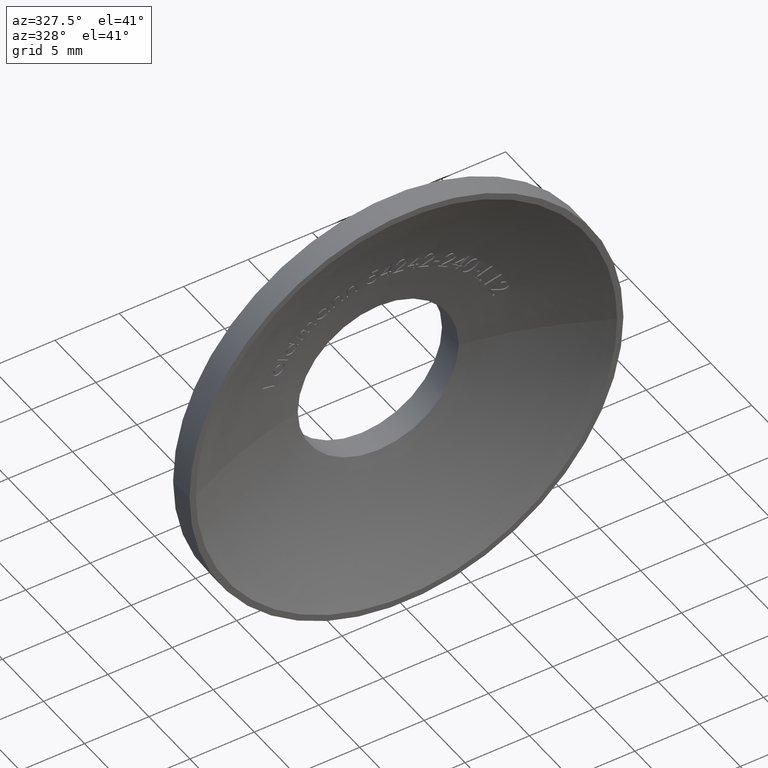
[diagram: clean part render]
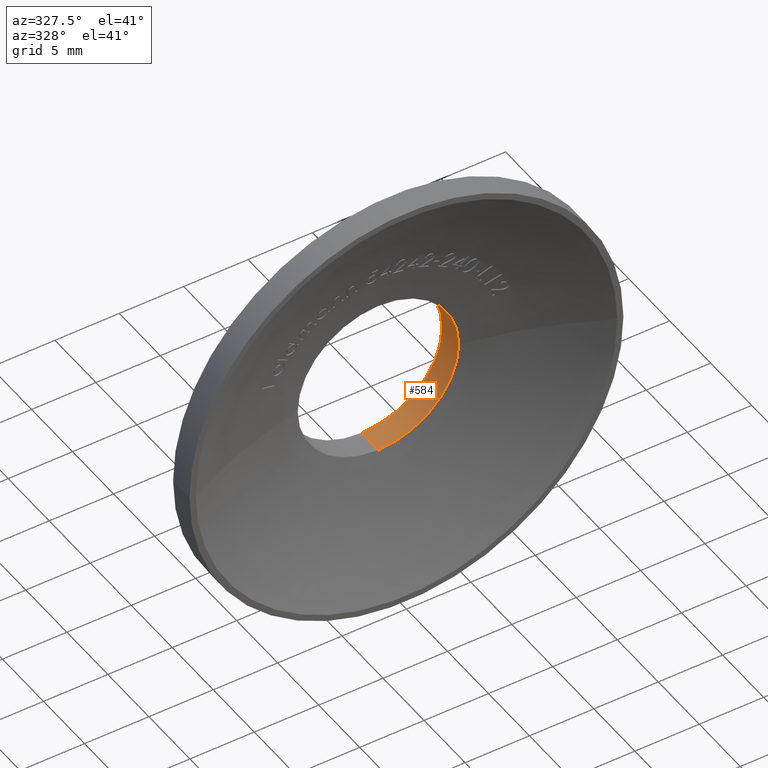
[diagram: same view with one face highlighted and labeled with its STEP entity id]
A machine part, auxiliary view. The second image highlights one B-rep face of the part: STEP entity #584.
In plain terms, the highlighted cylindrical surface (partial cylindrical patch) has radius 6.25 mm, axis along (0, -1, 0).
Its self-contained STEP definition (entity closure, byte-faithful):
#101 = ORIENTED_EDGE ( 'NONE', *, *, #11867, .F. ) ;
#227 = DIRECTION ( 'NONE',  ( 0.0000000000000000000, -1.000000000000000000, 0.0000000000000000000 ) ) ;
#263 = AXIS2_PLACEMENT_3D ( 'NONE', #10973, #10110, #3352 ) ;
#444 = VECTOR ( 'NONE', #227, 1000.000000000000000 ) ;
#569 = DIRECTION ( 'NONE',  ( 0.0000000000000000000, 1.000000000000000000, 0.0000000000000000000 ) ) ;
#584 = ADVANCED_FACE ( 'NONE', ( #7302 ), #5973, .F. ) ;
#728 = ORIENTED_EDGE ( 'NONE', *, *, #9350, .F. ) ;
#1206 = DIRECTION ( 'NONE',  ( 0.0000000000000000000, -1.000000000000000000, 0.0000000000000000000 ) ) ;
#1338 = LINE ( 'NONE', #8780, #444 ) ;
#1705 = CIRCLE ( 'NONE', #263, 6.250000000000000000 ) ;
#1943 = DIRECTION ( 'NONE',  ( 0.0000000000000000000, 0.0000000000000000000, -1.000000000000000000 ) ) ;
#1951 = CARTESIAN_POINT ( 'NONE',  ( 7.654042494670957600E-016, 3.445339509768711800, 6.250000000000000000 ) ) ;
#2762 = CARTESIAN_POINT ( 'NONE',  ( 6.250000000000000000, 5.475361189893106100, 0.0000000000000000000 ) ) ;
#3046 = VERTEX_POINT ( 'NONE', #2762 ) ;
#3345 = EDGE_CURVE ( 'NONE', #5464, #7706, #1338, .T. ) ;
#3352 = DIRECTION ( 'NONE',  ( 0.0000000000000000000, 0.0000000000000000000, -1.000000000000000000 ) ) ;
#3777 = CIRCLE ( 'NONE', #9578, 6.250000000000000000 ) ;
#3934 = CARTESIAN_POINT ( 'NONE',  ( 0.0000000000000000000, 3.445339509768711800, -6.250000000000000000 ) ) ;
#3944 = CARTESIAN_POINT ( 'NONE',  ( 0.0000000000000000000, 5.999999999999991100, 0.0000000000000000000 ) ) ;
#4235 = ORIENTED_EDGE ( 'NONE', *, *, #6866, .F. ) ;
#4320 = DIRECTION ( 'NONE',  ( -8.881784197001254300E-016, 0.0000000000000000000, -1.000000000000000000 ) ) ;
#4373 = ORIENTED_EDGE ( 'NONE', *, *, #11658, .F. ) ;
#4862 = VECTOR ( 'NONE', #9506, 1000.000000000000000 ) ;
#5426 = CIRCLE ( 'NONE', #6542, 6.250000000000000000 ) ;
#5464 = VERTEX_POINT ( 'NONE', #8686 ) ;
#5550 = CARTESIAN_POINT ( 'NONE',  ( 0.0000000000000000000, 3.445339509768711800, 0.0000000000000000000 ) ) ;
#5973 = CYLINDRICAL_SURFACE ( 'NONE', #11976, 6.250000000000000000 ) ;
#6542 = AXIS2_PLACEMENT_3D ( 'NONE', #5550, #10337, #1943 ) ;
#6866 = EDGE_CURVE ( 'NONE', #3046, #8816, #1705, .T. ) ;
#7164 = ORIENTED_EDGE ( 'NONE', *, *, #3345, .T. ) ;
#7302 = FACE_OUTER_BOUND ( 'NONE', #9178, .T. ) ;
#7496 = DIRECTION ( 'NONE',  ( 0.0000000000000000000, 0.0000000000000000000, -1.000000000000000000 ) ) ;
#7706 = VERTEX_POINT ( 'NONE', #3934 ) ;
#8513 = VERTEX_POINT ( 'NONE', #10777 ) ;
#8686 = CARTESIAN_POINT ( 'NONE',  ( 0.0000000000000000000, 5.475361189893106100, -6.250000000000000000 ) ) ;
#8780 = CARTESIAN_POINT ( 'NONE',  ( 0.0000000000000000000, 5.999999999999991100, -6.250000000000000000 ) ) ;
#8816 = VERTEX_POINT ( 'NONE', #9313 ) ;
#9178 = EDGE_LOOP ( 'NONE', ( #101, #4235, #728, #7164, #4373, #10393 ) ) ;
#9313 = CARTESIAN_POINT ( 'NONE',  ( 7.654042494670957600E-016, 5.475361189893106100, 6.250000000000000000 ) ) ;
#9350 = EDGE_CURVE ( 'NONE', #5464, #3046, #3777, .T. ) ;
#9506 = DIRECTION ( 'NONE',  ( 0.0000000000000000000, -1.000000000000000000, 0.0000000000000000000 ) ) ;
#9578 = AXIS2_PLACEMENT_3D ( 'NONE', #10318, #12164, #7496 ) ;
#9813 = EDGE_CURVE ( 'NONE', #11479, #8513, #5426, .T. ) ;
#9852 = AXIS2_PLACEMENT_3D ( 'NONE', #10024, #569, #4320 ) ;
#10024 = CARTESIAN_POINT ( 'NONE',  ( 0.0000000000000000000, 3.445339509768711800, 0.0000000000000000000 ) ) ;
#10110 = DIRECTION ( 'NONE',  ( -0.0000000000000000000, -1.000000000000000000, -0.0000000000000000000 ) ) ;
#10318 = CARTESIAN_POINT ( 'NONE',  ( 0.0000000000000000000, 5.475361189893106100, 0.0000000000000000000 ) ) ;
#10337 = DIRECTION ( 'NONE',  ( 0.0000000000000000000, 1.000000000000000000, 0.0000000000000000000 ) ) ;
#10379 = CIRCLE ( 'NONE', #9852, 6.250000000000000000 ) ;
#10393 = ORIENTED_EDGE ( 'NONE', *, *, #9813, .F. ) ;
#10422 = CARTESIAN_POINT ( 'NONE',  ( 7.654042494670957600E-016, 5.999999999999991100, 6.250000000000000000 ) ) ;
#10777 = CARTESIAN_POINT ( 'NONE',  ( 6.250000000000000000, 3.445339509768711800, -1.384973782481827000E-015 ) ) ;
#10819 = LINE ( 'NONE', #10422, #4862 ) ;
#10973 = CARTESIAN_POINT ( 'NONE',  ( 0.0000000000000000000, 5.475361189893106100, 0.0000000000000000000 ) ) ;
#11479 = VERTEX_POINT ( 'NONE', #1951 ) ;
#11658 = EDGE_CURVE ( 'NONE', #8513, #7706, #10379, .T. ) ;
#11686 = DIRECTION ( 'NONE',  ( 0.0000000000000000000, 0.0000000000000000000, -1.000000000000000000 ) ) ;
#11867 = EDGE_CURVE ( 'NONE', #8816, #11479, #10819, .T. ) ;
#11976 = AXIS2_PLACEMENT_3D ( 'NONE', #3944, #1206, #11686 ) ;
#12164 = DIRECTION ( 'NONE',  ( -0.0000000000000000000, -1.000000000000000000, -0.0000000000000000000 ) ) ;